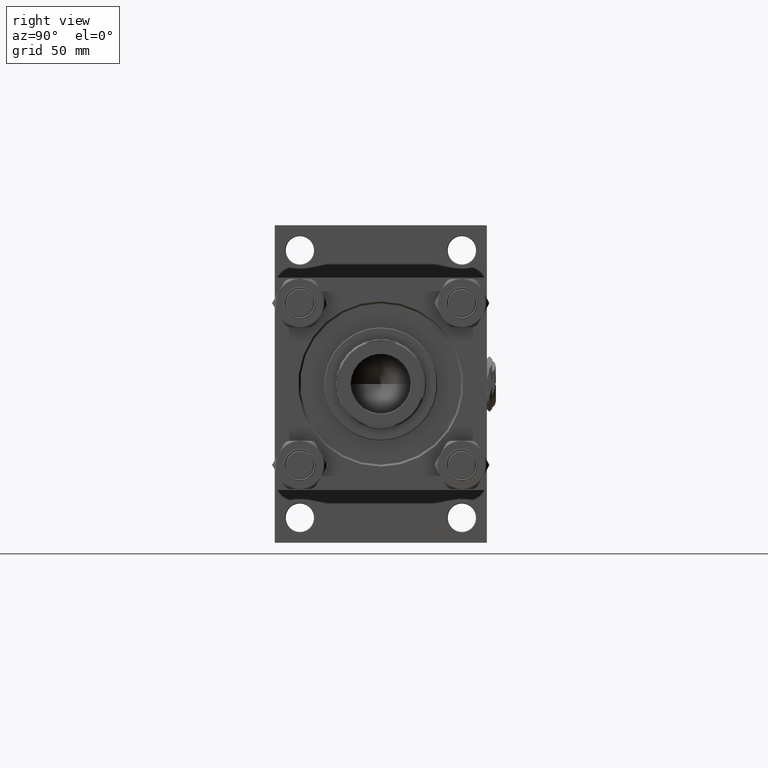
[diagram: clean part render]
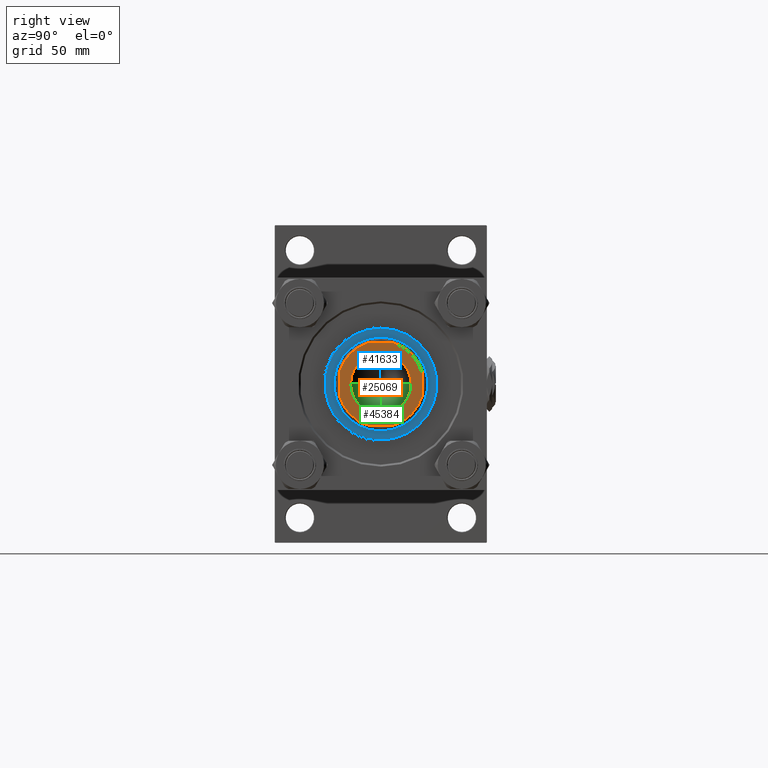
[diagram: same view with three faces highlighted in distinct colors, each labeled with its STEP entity id]
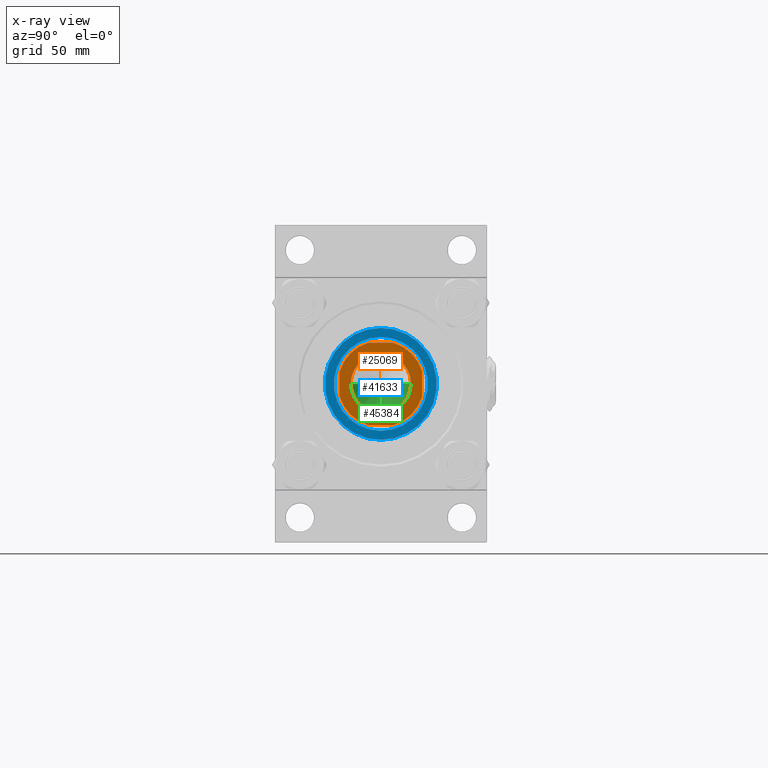
[diagram: x-ray of the same camera — body ghosted, the three highlighted faces saturated]
A machine part, right view with three faces highlighted in distinct colors.
The next image is the same camera in x-ray (body ghosted, the three faces saturated) — at least one of them is partly hidden behind the body in this view.
Their STEP definitions:

[orange] entity #25069 — the highlighted planar face has unit normal (1, 0, 0).
#192 = CARTESIAN_POINT ( 'NONE',  ( -23.55000000000001492, 2.884043211992018577E-15, 427.0000000000000000 ) ) ;
#271 = DIRECTION ( 'NONE',  ( 0.000000000000000000, -0.000000000000000000, -1.000000000000000000 ) ) ;
#791 = DIRECTION ( 'NONE',  ( -1.000000000000000000, -0.000000000000000000, -0.000000000000000000 ) ) ;
#1456 = ORIENTED_EDGE ( 'NONE', *, *, #14645, .T. ) ;
#1728 = AXIS2_PLACEMENT_3D ( 'NONE', #40978, #271, #36997 ) ;
#2559 = AXIS2_PLACEMENT_3D ( 'NONE', #5112, #4597, #41829 ) ;
#3178 = AXIS2_PLACEMENT_3D ( 'NONE', #43056, #18863, #13825 ) ;
#4597 = DIRECTION ( 'NONE',  ( -0.000000000000000000, 0.000000000000000000, 1.000000000000000000 ) ) ;
#4923 = VERTEX_POINT ( 'NONE', #192 ) ;
#5112 = CARTESIAN_POINT ( 'NONE',  ( 0.000000000000000000, 0.000000000000000000, 427.0000000000000000 ) ) ;
#5363 = VERTEX_POINT ( 'NONE', #21872 ) ;
#5415 = EDGE_LOOP ( 'NONE', ( #1456, #7115, #35660, #20585, #7740, #7019, #27798, #44940 ) ) ;
#5550 = DIRECTION ( 'NONE',  ( 1.000000000000000000, 0.000000000000000000, 0.000000000000000000 ) ) ;
#7019 = ORIENTED_EDGE ( 'NONE', *, *, #22744, .T. ) ;
#7110 = DIRECTION ( 'NONE',  ( -1.084202172485504434E-16, 1.000000000000000000, -0.000000000000000000 ) ) ;
#7115 = ORIENTED_EDGE ( 'NONE', *, *, #52392, .T. ) ;
#7317 = EDGE_CURVE ( 'NONE', #11604, #51694, #9431, .T. ) ;
#7343 = VERTEX_POINT ( 'NONE', #46676 ) ;
#7667 = CARTESIAN_POINT ( 'NONE',  ( -32.00000000000000000, -32.00000000000000000, 427.0000000000000000 ) ) ;
#7740 = ORIENTED_EDGE ( 'NONE', *, *, #51785, .T. ) ;
#9431 = CIRCLE ( 'NONE', #11156, 33.49999999999968026 ) ;
#9531 = VERTEX_POINT ( 'NONE', #42996 ) ;
#9610 = DIRECTION ( 'NONE',  ( 1.000000000000000000, 0.000000000000000000, 0.000000000000000000 ) ) ;
#9748 = CIRCLE ( 'NONE', #18217, 23.55000000000001492 ) ;
#11156 = AXIS2_PLACEMENT_3D ( 'NONE', #21693, #42953, #50426 ) ;
#11604 = VERTEX_POINT ( 'NONE', #41536 ) ;
#13336 = FACE_OUTER_BOUND ( 'NONE', #5415, .T. ) ;
#13825 = DIRECTION ( 'NONE',  ( 1.000000000000000000, 0.000000000000000000, 0.000000000000000000 ) ) ;
#14645 = EDGE_CURVE ( 'NONE', #5363, #7343, #31582, .T. ) ;
#14687 = EDGE_CURVE ( 'NONE', #4923, #48762, #9748, .T. ) ;
#16342 = ORIENTED_EDGE ( 'NONE', *, *, #45520, .T. ) ;
#17575 = LINE ( 'NONE', #33797, #50242 ) ;
#17635 = CIRCLE ( 'NONE', #3178, 33.49999999999968026 ) ;
#18217 = AXIS2_PLACEMENT_3D ( 'NONE', #33406, #21165, #49893 ) ;
#18863 = DIRECTION ( 'NONE',  ( -0.000000000000000000, 0.000000000000000000, 1.000000000000000000 ) ) ;
#19775 = AXIS2_PLACEMENT_3D ( 'NONE', #25796, #42014, #5550 ) ;
#20573 = VECTOR ( 'NONE', #40635, 1000.000000000000000 ) ;
#20585 = ORIENTED_EDGE ( 'NONE', *, *, #7317, .T. ) ;
#20584 = CARTESIAN_POINT ( 'NONE',  ( 9.912113800798296737, 32.00000000000000000, 427.0000000000000000 ) ) ;
#20801 = DIRECTION ( 'NONE',  ( -0.000000000000000000, 0.000000000000000000, 1.000000000000000000 ) ) ;
#21165 = DIRECTION ( 'NONE',  ( 0.000000000000000000, -0.000000000000000000, -1.000000000000000000 ) ) ;
#21669 = CARTESIAN_POINT ( 'NONE',  ( -32.00000000000000711, 9.912113800798428187, 427.0000000000000000 ) ) ;
#21693 = CARTESIAN_POINT ( 'NONE',  ( 0.000000000000000000, 0.000000000000000000, 427.0000000000000000 ) ) ;
#21872 = CARTESIAN_POINT ( 'NONE',  ( 32.00000000000000000, -9.912113800798373120, 427.0000000000000000 ) ) ;
#22163 = CIRCLE ( 'NONE', #1728, 23.55000000000001492 ) ;
#22532 = VERTEX_POINT ( 'NONE', #49996 ) ;
#22744 = EDGE_CURVE ( 'NONE', #9531, #42310, #17635, .T. ) ;
#24096 = VERTEX_POINT ( 'NONE', #20584 ) ;
#24175 = CARTESIAN_POINT ( 'NONE',  ( -9.912113800798435292, -32.00000000000000000, 427.0000000000000000 ) ) ;
#25069 = ADVANCED_FACE ( 'NONE', ( #51687, #13336 ), #49251, .T. ) ;
#25796 = CARTESIAN_POINT ( 'NONE',  ( 0.000000000000000000, 0.000000000000000000, 427.0000000000000000 ) ) ;
#25926 = DIRECTION ( 'NONE',  ( 1.084202172485504434E-16, -1.000000000000000000, 0.000000000000000000 ) ) ;
#26687 = VECTOR ( 'NONE', #7110, 1000.000000000000000 ) ;
#27798 = ORIENTED_EDGE ( 'NONE', *, *, #47959, .T. ) ;
#28776 = CARTESIAN_POINT ( 'NONE',  ( 0.000000000000000000, 0.000000000000000000, 427.0000000000000000 ) ) ;
#29703 = EDGE_LOOP ( 'NONE', ( #16342, #36944 ) ) ;
#30179 = CARTESIAN_POINT ( 'NONE',  ( -32.00000000000000711, 32.00000000000000000, 427.0000000000000000 ) ) ;
#31451 = EDGE_CURVE ( 'NONE', #22532, #5363, #46750, .T. ) ;
#31582 = LINE ( 'NONE', #43547, #26687 ) ;
#31607 = VECTOR ( 'NONE', #25926, 1000.000000000000000 ) ;
#33406 = CARTESIAN_POINT ( 'NONE',  ( 0.000000000000000000, 0.000000000000000000, 427.0000000000000000 ) ) ;
#33797 = CARTESIAN_POINT ( 'NONE',  ( -32.00000000000000711, 32.00000000000000000, 427.0000000000000000 ) ) ;
#34611 = EDGE_CURVE ( 'NONE', #24096, #11604, #17575, .T. ) ;
#35660 = ORIENTED_EDGE ( 'NONE', *, *, #34611, .T. ) ;
#36944 = ORIENTED_EDGE ( 'NONE', *, *, #14687, .T. ) ;
#36997 = DIRECTION ( 'NONE',  ( 1.000000000000000000, 0.000000000000000000, 0.000000000000000000 ) ) ;
#40635 = DIRECTION ( 'NONE',  ( 1.000000000000000000, 0.000000000000000000, 0.000000000000000000 ) ) ;
#40978 = CARTESIAN_POINT ( 'NONE',  ( 0.000000000000000000, 0.000000000000000000, 427.0000000000000000 ) ) ;
#41502 = AXIS2_PLACEMENT_3D ( 'NONE', #28776, #20801, #9610 ) ;
#41536 = CARTESIAN_POINT ( 'NONE',  ( -9.912113800798435292, 32.00000000000000000, 427.0000000000000000 ) ) ;
#41829 = DIRECTION ( 'NONE',  ( 1.000000000000000000, 0.000000000000000000, 0.000000000000000000 ) ) ;
#42014 = DIRECTION ( 'NONE',  ( -0.000000000000000000, 0.000000000000000000, 1.000000000000000000 ) ) ;
#42310 = VERTEX_POINT ( 'NONE', #24175 ) ;
#42953 = DIRECTION ( 'NONE',  ( -0.000000000000000000, 0.000000000000000000, 1.000000000000000000 ) ) ;
#42996 = CARTESIAN_POINT ( 'NONE',  ( -32.00000000000000000, -9.912113800798438845, 427.0000000000000000 ) ) ;
#43056 = CARTESIAN_POINT ( 'NONE',  ( 0.000000000000000000, 0.000000000000000000, 427.0000000000000000 ) ) ;
#43547 = CARTESIAN_POINT ( 'NONE',  ( 31.99999999999999289, 32.00000000000000000, 427.0000000000000000 ) ) ;
#44344 = CIRCLE ( 'NONE', #19775, 33.49999999999964473 ) ;
#44376 = CARTESIAN_POINT ( 'NONE',  ( 23.55000000000001492, 0.000000000000000000, 427.0000000000000000 ) ) ;
#44886 = LINE ( 'NONE', #7667, #20573 ) ;
#44940 = ORIENTED_EDGE ( 'NONE', *, *, #31451, .T. ) ;
#45520 = EDGE_CURVE ( 'NONE', #48762, #4923, #22163, .T. ) ;
#46131 = LINE ( 'NONE', #30179, #31607 ) ;
#46676 = CARTESIAN_POINT ( 'NONE',  ( 32.00000000000000000, 9.912113800798296737, 427.0000000000000000 ) ) ;
#46750 = CIRCLE ( 'NONE', #2559, 33.49999999999965894 ) ;
#47959 = EDGE_CURVE ( 'NONE', #42310, #22532, #44886, .T. ) ;
#48762 = VERTEX_POINT ( 'NONE', #44376 ) ;
#49251 = PLANE ( 'NONE',  #41502 ) ;
#49893 = DIRECTION ( 'NONE',  ( 1.000000000000000000, 0.000000000000000000, 0.000000000000000000 ) ) ;
#49996 = CARTESIAN_POINT ( 'NONE',  ( 9.912113800798369567, -32.00000000000000000, 427.0000000000000000 ) ) ;
#50242 = VECTOR ( 'NONE', #791, 1000.000000000000000 ) ;
#50426 = DIRECTION ( 'NONE',  ( 1.000000000000000000, 0.000000000000000000, 0.000000000000000000 ) ) ;
#51687 = FACE_BOUND ( 'NONE', #29703, .T. ) ;
#51694 = VERTEX_POINT ( 'NONE', #21669 ) ;
#51785 = EDGE_CURVE ( 'NONE', #51694, #9531, #46131, .T. ) ;
#52392 = EDGE_CURVE ( 'NONE', #7343, #24096, #44344, .T. ) ;

[blue] entity #41633 — the highlighted planar face has unit normal (1, 0, 0).
#2420 = DIRECTION ( 'NONE',  ( 0.000000000000000000, 0.000000000000000000, 1.000000000000000000 ) ) ;
#3566 = CARTESIAN_POINT ( 'NONE',  ( -36.50000000000000000, 4.469960816887838430E-15, 38.69999999999999574 ) ) ;
#3841 = EDGE_CURVE ( 'NONE', #17071, #16080, #38305, .T. ) ;
#4458 = AXIS2_PLACEMENT_3D ( 'NONE', #4883, #5422, #42136 ) ;
#4492 = AXIS2_PLACEMENT_3D ( 'NONE', #47067, #26850, #39610 ) ;
#4883 = CARTESIAN_POINT ( 'NONE',  ( 0.000000000000000000, 0.000000000000000000, 38.69999999999999574 ) ) ;
#5422 = DIRECTION ( 'NONE',  ( 0.000000000000000000, 0.000000000000000000, 1.000000000000000000 ) ) ;
#6431 = CARTESIAN_POINT ( 'NONE',  ( 0.000000000000000000, 0.000000000000000000, 38.69999999999999574 ) ) ;
#9849 = ORIENTED_EDGE ( 'NONE', *, *, #3841, .T. ) ;
#12267 = DIRECTION ( 'NONE',  ( 0.000000000000000000, 0.000000000000000000, 1.000000000000000000 ) ) ;
#12322 = CARTESIAN_POINT ( 'NONE',  ( 36.50000000000000000, 0.000000000000000000, 38.69999999999999574 ) ) ;
#13362 = ORIENTED_EDGE ( 'NONE', *, *, #38914, .F. ) ;
#14971 = DIRECTION ( 'NONE',  ( 1.000000000000000000, 0.000000000000000000, 0.000000000000000000 ) ) ;
#15747 = VERTEX_POINT ( 'NONE', #3566 ) ;
#16080 = VERTEX_POINT ( 'NONE', #16283 ) ;
#16283 = CARTESIAN_POINT ( 'NONE',  ( -43.50000000000001421, 0.000000000000000000, 38.69999999999999574 ) ) ;
#17071 = VERTEX_POINT ( 'NONE', #44275 ) ;
#19804 = CIRCLE ( 'NONE', #49525, 36.50000000000000000 ) ;
#19988 = CARTESIAN_POINT ( 'NONE',  ( 0.000000000000000000, 0.000000000000000000, 38.69999999999999574 ) ) ;
#21400 = FACE_OUTER_BOUND ( 'NONE', #40285, .T. ) ;
#21654 = ORIENTED_EDGE ( 'NONE', *, *, #33743, .F. ) ;
#23803 = AXIS2_PLACEMENT_3D ( 'NONE', #43834, #51576, #27370 ) ;
#25659 = FACE_BOUND ( 'NONE', #33875, .T. ) ;
#26850 = DIRECTION ( 'NONE',  ( 0.000000000000000000, 0.000000000000000000, 1.000000000000000000 ) ) ;
#27370 = DIRECTION ( 'NONE',  ( 1.000000000000000000, 0.000000000000000000, 0.000000000000000000 ) ) ;
#27709 = DIRECTION ( 'NONE',  ( 1.000000000000000000, 0.000000000000000000, 0.000000000000000000 ) ) ;
#33743 = EDGE_CURVE ( 'NONE', #15747, #36510, #46825, .T. ) ;
#33875 = EDGE_LOOP ( 'NONE', ( #13362, #21654 ) ) ;
#36510 = VERTEX_POINT ( 'NONE', #12322 ) ;
#37943 = EDGE_CURVE ( 'NONE', #16080, #17071, #46137, .T. ) ;
#38305 = CIRCLE ( 'NONE', #23803, 43.50000000000001421 ) ;
#38914 = EDGE_CURVE ( 'NONE', #36510, #15747, #19804, .T. ) ;
#39610 = DIRECTION ( 'NONE',  ( 1.000000000000000000, 0.000000000000000000, 0.000000000000000000 ) ) ;
#40285 = EDGE_LOOP ( 'NONE', ( #40291, #9849 ) ) ;
#40291 = ORIENTED_EDGE ( 'NONE', *, *, #37943, .T. ) ;
#41633 = ADVANCED_FACE ( 'NONE', ( #25659, #21400 ), #49866, .T. ) ;
#42136 = DIRECTION ( 'NONE',  ( 1.000000000000000000, 0.000000000000000000, -0.000000000000000000 ) ) ;
#43834 = CARTESIAN_POINT ( 'NONE',  ( 0.000000000000000000, 0.000000000000000000, 38.69999999999999574 ) ) ;
#44275 = CARTESIAN_POINT ( 'NONE',  ( 43.50000000000001421, 5.357829746269670620E-15, 38.69999999999999574 ) ) ;
#46137 = CIRCLE ( 'NONE', #4492, 43.50000000000001421 ) ;
#46825 = CIRCLE ( 'NONE', #49376, 36.50000000000000000 ) ;
#47067 = CARTESIAN_POINT ( 'NONE',  ( 0.000000000000000000, 0.000000000000000000, 38.69999999999999574 ) ) ;
#49376 = AXIS2_PLACEMENT_3D ( 'NONE', #6431, #2420, #14971 ) ;
#49525 = AXIS2_PLACEMENT_3D ( 'NONE', #19988, #12267, #27709 ) ;
#49866 = PLANE ( 'NONE',  #4458 ) ;
#51576 = DIRECTION ( 'NONE',  ( 0.000000000000000000, 0.000000000000000000, 1.000000000000000000 ) ) ;

[green] entity #45384 — the highlighted conical surface has half-angle 59 deg.
#5985 = AXIS2_PLACEMENT_3D ( 'NONE', #51929, #16254, #15750 ) ;
#6884 = CONICAL_SURFACE ( 'NONE', #5985, 23.24999999999998579, 1.029744258676653423 ) ;
#8676 = AXIS2_PLACEMENT_3D ( 'NONE', #51343, #47602, #39098 ) ;
#9955 = EDGE_LOOP ( 'NONE', ( #21578, #26293, #12482 ) ) ;
#10089 = EDGE_CURVE ( 'NONE', #35465, #35112, #31609, .T. ) ;
#10664 = EDGE_CURVE ( 'NONE', #42372, #35112, #38170, .T. ) ;
#12281 = FACE_OUTER_BOUND ( 'NONE', #9955, .T. ) ;
#12482 = ORIENTED_EDGE ( 'NONE', *, *, #10089, .T. ) ;
#15750 = DIRECTION ( 'NONE',  ( 1.000000000000000000, 0.000000000000000000, 0.000000000000000000 ) ) ;
#16076 = CARTESIAN_POINT ( 'NONE',  ( 23.24999999999998579, 0.000000000000000000, 359.0000000000000000 ) ) ;
#16254 = DIRECTION ( 'NONE',  ( -0.000000000000000000, -0.000000000000000000, 1.000000000000000000 ) ) ;
#21578 = ORIENTED_EDGE ( 'NONE', *, *, #10664, .F. ) ;
#23160 = VECTOR ( 'NONE', #41116, 1000.000000000000000 ) ;
#24953 = CARTESIAN_POINT ( 'NONE',  ( -1.584115414415908206E-14, 0.000000000000000000, 345.0299906076091929 ) ) ;
#26293 = ORIENTED_EDGE ( 'NONE', *, *, #51311, .T. ) ;
#27947 = LINE ( 'NONE', #28988, #46034 ) ;
#28988 = CARTESIAN_POINT ( 'NONE',  ( 23.24999999999998579, 0.000000000000000000, 359.0000000000000000 ) ) ;
#29739 = CARTESIAN_POINT ( 'NONE',  ( -23.24999999999998579, 2.847303808017594561E-15, 359.0000000000000000 ) ) ;
#31609 = CIRCLE ( 'NONE', #8676, 23.24999999999998579 ) ;
#35112 = VERTEX_POINT ( 'NONE', #29739 ) ;
#35465 = VERTEX_POINT ( 'NONE', #16076 ) ;
#38170 = LINE ( 'NONE', #41621, #23160 ) ;
#39098 = DIRECTION ( 'NONE',  ( 1.000000000000000000, 0.000000000000000000, 0.000000000000000000 ) ) ;
#40684 = DIRECTION ( 'NONE',  ( 0.8571673007021117785, 0.000000000000000000, 0.5150380749100550437 ) ) ;
#41116 = DIRECTION ( 'NONE',  ( -0.8571673007021117785, 1.049727191138617956E-16, 0.5150380749100550437 ) ) ;
#41621 = CARTESIAN_POINT ( 'NONE',  ( -23.24999999999998579, 2.847303808017594561E-15, 359.0000000000000000 ) ) ;
#42372 = VERTEX_POINT ( 'NONE', #24953 ) ;
#45384 = ADVANCED_FACE ( 'NONE', ( #12281 ), #6884, .F. ) ;
#46034 = VECTOR ( 'NONE', #40684, 1000.000000000000000 ) ;
#47602 = DIRECTION ( 'NONE',  ( -0.000000000000000000, -0.000000000000000000, 1.000000000000000000 ) ) ;
#51311 = EDGE_CURVE ( 'NONE', #42372, #35465, #27947, .T. ) ;
#51343 = CARTESIAN_POINT ( 'NONE',  ( 0.000000000000000000, 0.000000000000000000, 359.0000000000000000 ) ) ;
#51929 = CARTESIAN_POINT ( 'NONE',  ( 0.000000000000000000, 0.000000000000000000, 359.0000000000000000 ) ) ;